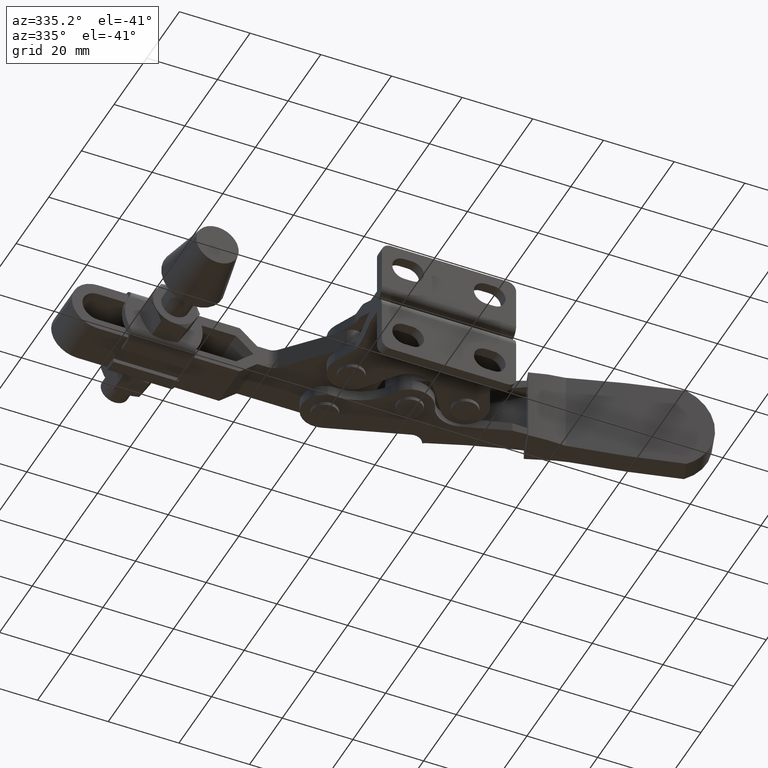
[diagram: clean part render]
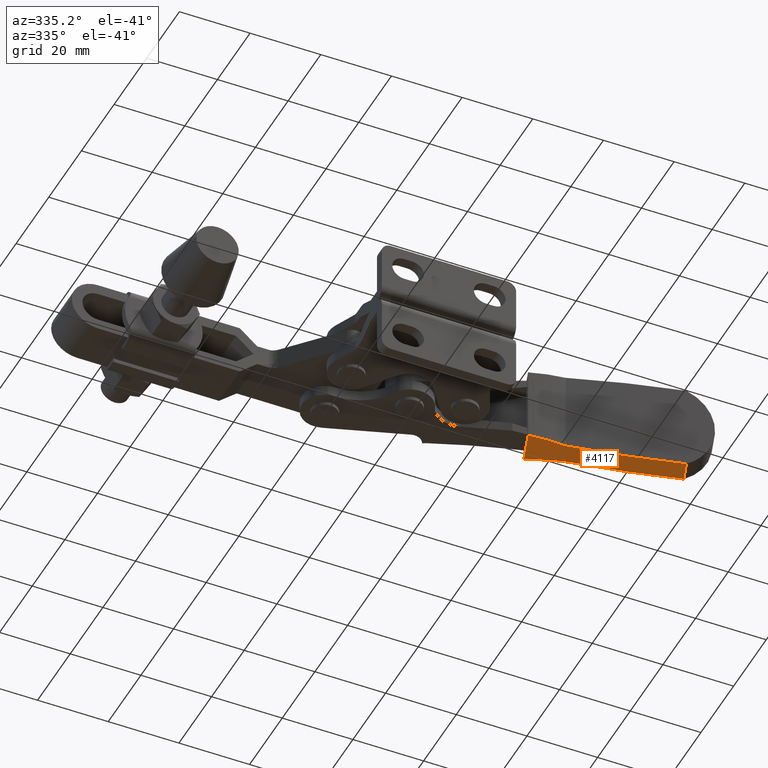
[diagram: same view with one face highlighted and labeled with its STEP entity id]
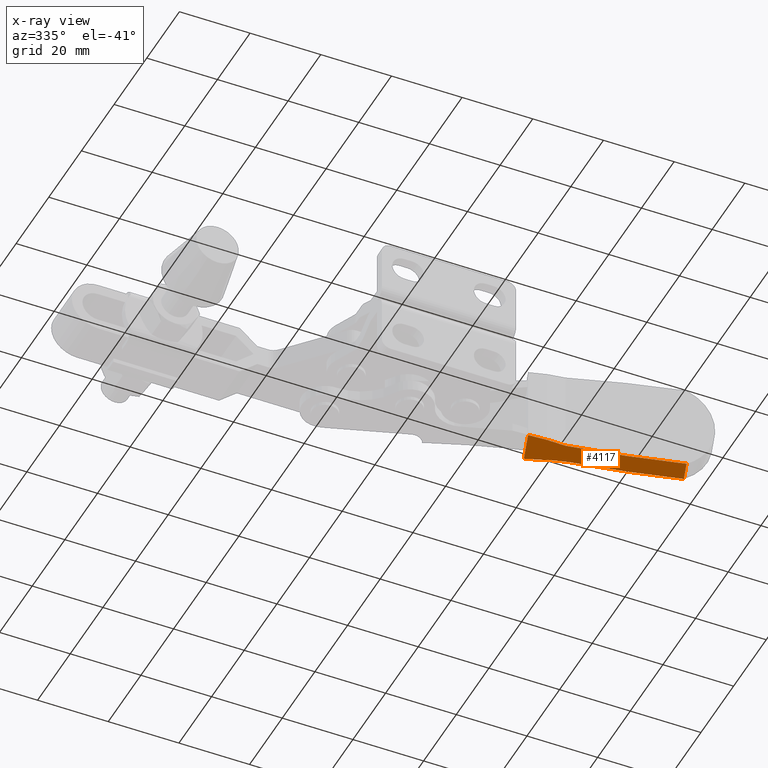
[diagram: x-ray of the same camera — body ghosted, the highlighted face saturated]
A machine part, auxiliary view. The second image highlights one B-rep face of the part: STEP entity #4117.
The next image is the same camera in x-ray: the body ghosted, the highlighted face saturated — about 0% of this face is hidden behind the body in this view.
In plain terms, the highlighted cylindrical surface (partial cylindrical patch) has radius 333.97 mm, axis along (0.3102, 0.9507, -0).
Its self-contained STEP definition (entity closure, byte-faithful):
#119 = EDGE_CURVE ( 'NONE', #2304, #8703, #2498, .T. ) ;
#245 = VERTEX_POINT ( 'NONE', #6558 ) ;
#647 = EDGE_CURVE ( 'NONE', #4403, #5292, #1961, .T. ) ;
#659 = B_SPLINE_CURVE_WITH_KNOTS ( 'NONE', 3,
 ( #5327, #2750, #9664, #4495 ),
 .UNSPECIFIED., .F., .F.,
 ( 4, 4 ),
 ( 0.0000000000000000000, 0.004014893948430631200 ),
 .UNSPECIFIED. ) ;
#676 = CARTESIAN_POINT ( 'NONE',  ( 60.74577005770547100, 30.77078444955618900, -10.94910436399500500 ) ) ;
#754 = EDGE_CURVE ( 'NONE', #11173, #5292, #8779, .T. ) ;
#841 = DIRECTION ( 'NONE',  ( -0.9506745420702115100, 0.3101901272761489700, 0.0000000000000000000 ) ) ;
#887 = EDGE_CURVE ( 'NONE', #245, #2304, #9178, .T. ) ;
#1294 = CARTESIAN_POINT ( 'NONE',  ( 69.16711789370295100, 27.11557470973236800, -11.70054177588013500 ) ) ;
#1720 = CYLINDRICAL_SURFACE ( 'NONE', #2497, 333.9696061633342800 ) ;
#1779 = ORIENTED_EDGE ( 'NONE', *, *, #2773, .T. ) ;
#1911 = CARTESIAN_POINT ( 'NONE',  ( 65.40400007890426100, 28.48194214346851500, -11.39828730508615500 ) ) ;
#1961 =( BOUNDED_CURVE ( )  B_SPLINE_CURVE ( 3, ( #7177, #8056, #4614, #6302 ),
 .UNSPECIFIED., .F., .F. ) 
 B_SPLINE_CURVE_WITH_KNOTS ( ( 4, 4 ),
 ( 4.643001409332055300, 4.732299589759934500 ),
 .UNSPECIFIED. ) 
 CURVE ( )  GEOMETRIC_REPRESENTATION_ITEM ( )  RATIONAL_B_SPLINE_CURVE ( ( 1.000000000000000000, 0.9993355966349852800, 0.9993355966349852800, 1.000000000000000000 ) ) 
 REPRESENTATION_ITEM ( '' )  );
#2129 = CARTESIAN_POINT ( 'NONE',  ( 96.33387897931697800, 14.29408367986270200, -12.43799414531151900 ) ) ;
#2304 = VERTEX_POINT ( 'NONE', #10094 ) ;
#2408 = VECTOR ( 'NONE', #9635, 1000.000000000000000 ) ;
#2456 = ORIENTED_EDGE ( 'NONE', *, *, #4381, .T. ) ;
#2497 = AXIS2_PLACEMENT_3D ( 'NONE', #6038, #8574, #841 ) ;
#2498 =( BOUNDED_CURVE ( )  B_SPLINE_CURVE ( 3, ( #11084, #676, #6743, #5017 ),
 .UNSPECIFIED., .F., .F. ) 
 B_SPLINE_CURVE_WITH_KNOTS ( ( 4, 4 ),
 ( 1.466226621879488400, 1.489393417423005900 ),
 .UNSPECIFIED. ) 
 CURVE ( )  GEOMETRIC_REPRESENTATION_ITEM ( )  RATIONAL_B_SPLINE_CURVE ( ( 1.000000000000000000, 0.9999552754654336100, 0.9999552754654336100, 1.000000000000000000 ) ) 
 REPRESENTATION_ITEM ( '' )  );
#2660 =( BOUNDED_CURVE ( )  B_SPLINE_CURVE ( 3, ( #2129, #8192, #3010, #9063 ),
 .UNSPECIFIED., .F., .F. ) 
 B_SPLINE_CURVE_WITH_KNOTS ( ( 4, 4 ),
 ( 1.550885717419652000, 1.645467350796613500 ),
 .UNSPECIFIED. ) 
 CURVE ( )  GEOMETRIC_REPRESENTATION_ITEM ( )  RATIONAL_B_SPLINE_CURVE ( ( 1.000000000000000000, 0.9992546651414118100, 0.9992546651414118100, 1.000000000000000000 ) ) 
 REPRESENTATION_ITEM ( '' )  );
#2750 = CARTESIAN_POINT ( 'NONE',  ( 66.60828030566717900, 27.89021362880610500, -11.50666461016448700 ) ) ;
#2773 = EDGE_CURVE ( 'NONE', #8018, #245, #6277, .T. ) ;
#3010 = CARTESIAN_POINT ( 'NONE',  ( 75.81834364603564300, 19.31191168763103900, -12.35933862249322200 ) ) ;
#3735 = ORIENTED_EDGE ( 'NONE', *, *, #754, .F. ) ;
#3986 = CARTESIAN_POINT ( 'NONE',  ( 65.58622850458670000, 21.81455142387918800, -11.57355518563012400 ) ) ;
#4117 = ADVANCED_FACE ( 'NONE', ( #4850 ), #1720, .T. ) ;
#4381 = EDGE_CURVE ( 'NONE', #11173, #8018, #2660, .T. ) ;
#4403 = VERTEX_POINT ( 'NONE', #1294 ) ;
#4461 = CARTESIAN_POINT ( 'NONE',  ( 86.15411072830539800, -16.90499607613391200, -12.43799414531151900 ) ) ;
#4495 = CARTESIAN_POINT ( 'NONE',  ( 69.16711789370295100, 27.11557470973236800, -11.70054177588013500 ) ) ;
#4614 = CARTESIAN_POINT ( 'NONE',  ( 88.51512048240987000, 22.38330973556465500, -12.63597741483904700 ) ) ;
#4835 = CARTESIAN_POINT ( 'NONE',  ( 96.33387897931697800, 14.29408367986270200, -12.43799414531151900 ) ) ;
#4850 = FACE_OUTER_BOUND ( 'NONE', #8118, .T. ) ;
#4963 = CARTESIAN_POINT ( 'NONE',  ( 98.20033906263819300, 20.01443364904166000, -12.43799414531151900 ) ) ;
#5017 = CARTESIAN_POINT ( 'NONE',  ( 65.40400007890426100, 28.48194214346851500, -11.39828730508615500 ) ) ;
#5292 = VERTEX_POINT ( 'NONE', #4963 ) ;
#5327 = CARTESIAN_POINT ( 'NONE',  ( 65.40400007890426100, 28.48194214346851500, -11.39828730508615500 ) ) ;
#5733 = CARTESIAN_POINT ( 'NONE',  ( 55.50891388266397500, 22.98983324084432300, -10.67990410551269800 ) ) ;
#5765 = ORIENTED_EDGE ( 'NONE', *, *, #647, .T. ) ;
#6009 = DIRECTION ( 'NONE',  ( 0.3101901272761489700, 0.9506745420702116300, -6.138348435031067000E-033 ) ) ;
#6038 = CARTESIAN_POINT ( 'NONE',  ( 79.83298155132955300, -14.84251120127302500, 321.4654160243984500 ) ) ;
#6148 = EDGE_CURVE ( 'NONE', #8703, #4403, #659, .T. ) ;
#6277 = B_SPLINE_CURVE_WITH_KNOTS ( 'NONE', 3,
 ( #3986, #9177, #10926, #5733 ),
 .UNSPECIFIED., .F., .F.,
 ( 4, 4 ),
 ( 0.0000000000000000000, 0.01018489909579379600 ),
 .UNSPECIFIED. ) ;
#6302 = CARTESIAN_POINT ( 'NONE',  ( 98.20033906263819300, 20.01443364904166000, -12.43799414531151900 ) ) ;
#6558 = CARTESIAN_POINT ( 'NONE',  ( 55.50891388266397500, 22.98983324084432300, -10.67990410551269800 ) ) ;
#6743 = CARTESIAN_POINT ( 'NONE',  ( 63.07370585061690300, 29.62694271043566700, -11.18857614078326000 ) ) ;
#6792 = ORIENTED_EDGE ( 'NONE', *, *, #6148, .T. ) ;
#7177 = CARTESIAN_POINT ( 'NONE',  ( 69.16711789370295100, 27.11557470973236800, -11.70054177588013500 ) ) ;
#7308 = ORIENTED_EDGE ( 'NONE', *, *, #887, .T. ) ;
#8018 = VERTEX_POINT ( 'NONE', #8702 ) ;
#8056 = CARTESIAN_POINT ( 'NONE',  ( 78.83094589458122000, 24.75193047538488100, -12.38999652783284200 ) ) ;
#8118 = EDGE_LOOP ( 'NONE', ( #1779, #7308, #9180, #6792, #5765, #3735, #2456 ) ) ;
#8192 = CARTESIAN_POINT ( 'NONE',  ( 86.07520526745189200, 16.80321929039907400, -12.64769986807520800 ) ) ;
#8574 = DIRECTION ( 'NONE',  ( 0.3101901272761489700, 0.9506745420702116300, -6.138348435031067000E-033 ) ) ;
#8620 = CARTESIAN_POINT ( 'NONE',  ( 46.69295030932251200, -4.029441055828322700, -10.67990410551269800 ) ) ;
#8702 = CARTESIAN_POINT ( 'NONE',  ( 65.58622850458670000, 21.81455142387918800, -11.57355518563012400 ) ) ;
#8703 = VERTEX_POINT ( 'NONE', #1911 ) ;
#8779 = LINE ( 'NONE', #4461, #2408 ) ;
#8903 = VECTOR ( 'NONE', #6009, 1000.000000000000000 ) ;
#9063 = CARTESIAN_POINT ( 'NONE',  ( 65.58622850458670000, 21.81455142387918800, -11.57355518563012400 ) ) ;
#9177 = CARTESIAN_POINT ( 'NONE',  ( 62.18384443825945600, 21.87663356185126800, -11.33013674216790700 ) ) ;
#9178 = LINE ( 'NONE', #8620, #8903 ) ;
#9180 = ORIENTED_EDGE ( 'NONE', *, *, #119, .T. ) ;
#9635 = DIRECTION ( 'NONE',  ( 0.3101901272761489700, 0.9506745420702116300, -6.138348435031067000E-033 ) ) ;
#9664 = CARTESIAN_POINT ( 'NONE',  ( 67.86260594998057600, 27.43464103977638800, -11.60747286379930900 ) ) ;
#10094 = CARTESIAN_POINT ( 'NONE',  ( 58.42050504770447400, 31.91331388746186800, -10.67990410551269800 ) ) ;
#10926 = CARTESIAN_POINT ( 'NONE',  ( 58.82468097880975900, 22.26936620198484100, -11.03419205917139800 ) ) ;
#11084 = CARTESIAN_POINT ( 'NONE',  ( 58.42050504770447400, 31.91331388746186800, -10.67990410551269800 ) ) ;
#11173 = VERTEX_POINT ( 'NONE', #4835 ) ;